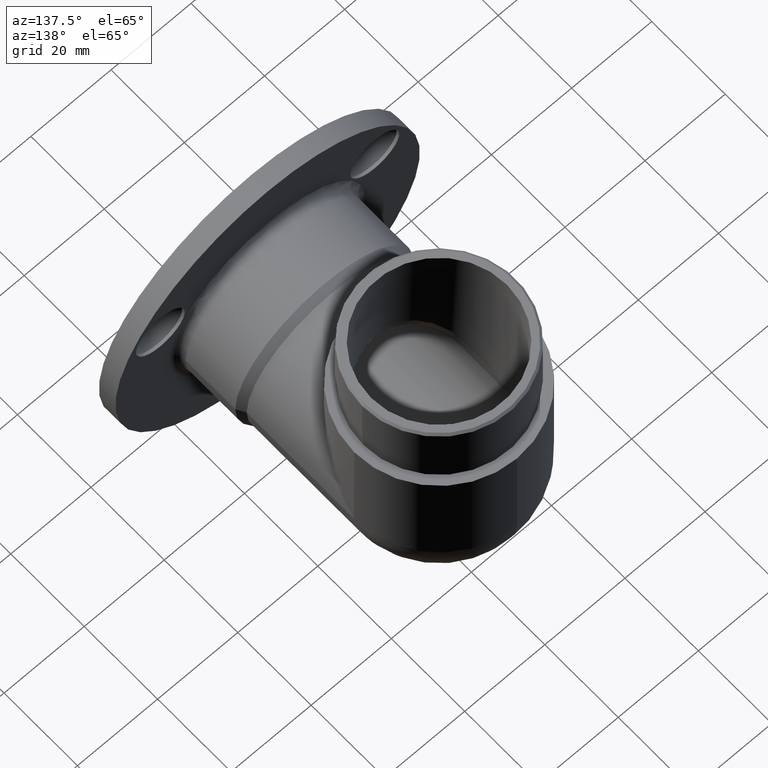
[diagram: clean part render]
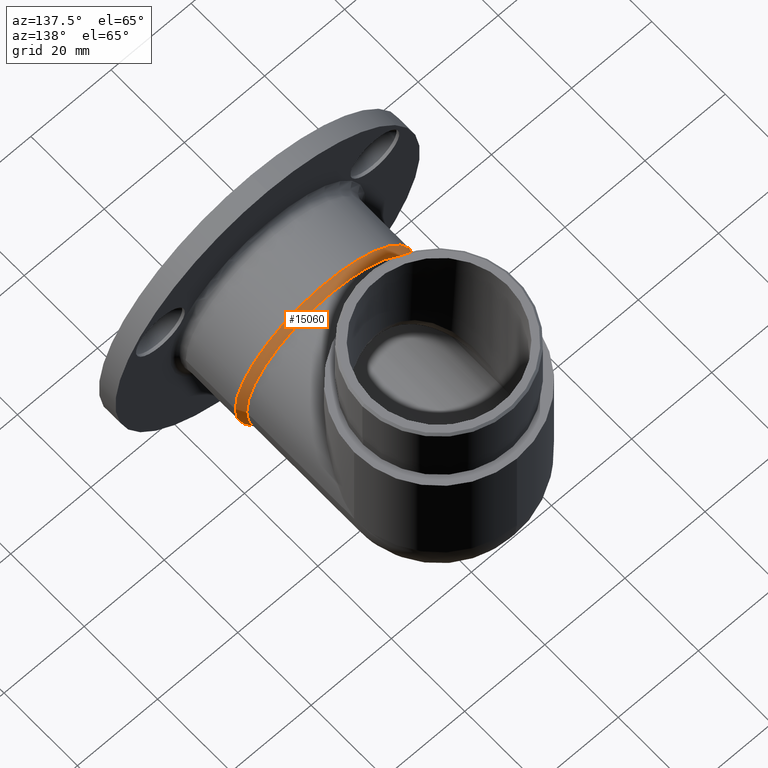
[diagram: same view with one face highlighted and labeled with its STEP entity id]
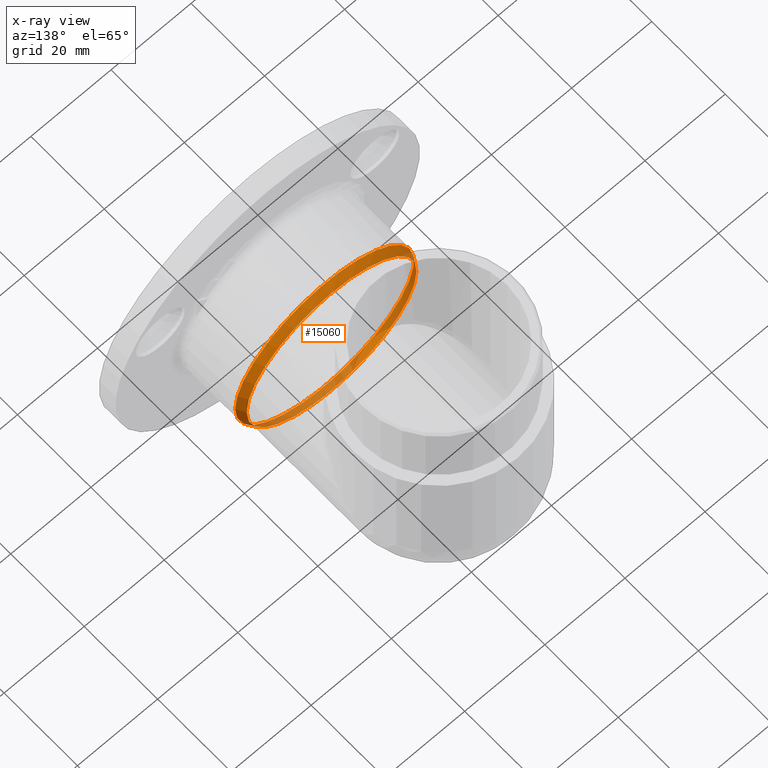
[diagram: x-ray of the same camera — body ghosted, the highlighted face saturated]
A machine part, auxiliary view. The second image highlights one B-rep face of the part: STEP entity #15060.
The next image is the same camera in x-ray: the body ghosted, the highlighted face saturated — about 30% of this face is hidden behind the body in this view.
In plain terms, the highlighted conical surface has half-angle 30 deg.
Its self-contained STEP definition (entity closure, byte-faithful):
#192 = CARTESIAN_POINT ( 'NONE',  ( -21.19999999999999600, 21.90525588832578700, -6.938893903907228400E-015 ) ) ;
#333 = ORIENTED_EDGE ( 'NONE', *, *, #15257, .T. ) ;
#350 = AXIS2_PLACEMENT_3D ( 'NONE', #5551, #9405, #14193 ) ;
#601 = DIRECTION ( 'NONE',  ( -2.192750485135992100E-016, -1.000000000000000000, -0.0000000000000000000 ) ) ;
#715 = DIRECTION ( 'NONE',  ( 1.000000000000000000, -1.636531581110195200E-016, 0.0000000000000000000 ) ) ;
#1210 = VERTEX_POINT ( 'NONE', #15682 ) ;
#1785 = VERTEX_POINT ( 'NONE', #192 ) ;
#1965 = CIRCLE ( 'NONE', #11072, 22.29999999999999400 ) ;
#2383 = CARTESIAN_POINT ( 'NONE',  ( 3.469446951953612200E-015, 21.90525588832578300, 21.20000000000000300 ) ) ;
#2528 = VERTEX_POINT ( 'NONE', #9554 ) ;
#2547 = DIRECTION ( 'NONE',  ( 1.000000000000000000, -1.555805808050948500E-016, 0.0000000000000000000 ) ) ;
#2681 = CARTESIAN_POINT ( 'NONE',  ( 4.385500970271986400E-015, 20.00000000000000700, 0.0000000000000000000 ) ) ;
#3055 = CIRCLE ( 'NONE', #7481, 21.20000000000000300 ) ;
#3869 = EDGE_CURVE ( 'NONE', #2528, #1210, #15686, .T. ) ;
#4549 = CARTESIAN_POINT ( 'NONE',  ( 22.29999999999999700, 20.00000000000000400, 0.0000000000000000000 ) ) ;
#4660 = ORIENTED_EDGE ( 'NONE', *, *, #5767, .F. ) ;
#4805 = VERTEX_POINT ( 'NONE', #2383 ) ;
#5551 = CARTESIAN_POINT ( 'NONE',  ( 4.803276047615440900E-015, 21.90525588832578300, 0.0000000000000000000 ) ) ;
#5767 = EDGE_CURVE ( 'NONE', #5981, #5981, #1965, .T. ) ;
#5981 = VERTEX_POINT ( 'NONE', #4549 ) ;
#5996 = CIRCLE ( 'NONE', #350, 21.20000000000000300 ) ;
#6835 = CARTESIAN_POINT ( 'NONE',  ( 4.803276047615440900E-015, 21.90525588832578300, 0.0000000000000000000 ) ) ;
#7344 = CONICAL_SURFACE ( 'NONE', #10778, 22.29999999999999400, 0.5235987755982924900 ) ;
#7481 = AXIS2_PLACEMENT_3D ( 'NONE', #13235, #10759, #10822 ) ;
#7737 = FACE_BOUND ( 'NONE', #15430, .T. ) ;
#8334 = CARTESIAN_POINT ( 'NONE',  ( 4.385500970271986400E-015, 20.00000000000000700, 0.0000000000000000000 ) ) ;
#8855 = DIRECTION ( 'NONE',  ( -2.192750485135992100E-016, -1.000000000000000000, -0.0000000000000000000 ) ) ;
#9224 = DIRECTION ( 'NONE',  ( -2.192750485135992100E-016, -1.000000000000000000, -0.0000000000000000000 ) ) ;
#9405 = DIRECTION ( 'NONE',  ( -2.192750485135992100E-016, -1.000000000000000000, -0.0000000000000000000 ) ) ;
#9554 = CARTESIAN_POINT ( 'NONE',  ( 3.469446951953614200E-015, 21.90525588832578700, -21.20000000000000300 ) ) ;
#9783 = ORIENTED_EDGE ( 'NONE', *, *, #3869, .T. ) ;
#9796 = DIRECTION ( 'NONE',  ( -2.192750485135992100E-016, -1.000000000000000000, -0.0000000000000000000 ) ) ;
#9962 = EDGE_CURVE ( 'NONE', #1785, #2528, #3055, .T. ) ;
#10542 = AXIS2_PLACEMENT_3D ( 'NONE', #14113, #9224, #715 ) ;
#10759 = DIRECTION ( 'NONE',  ( -2.192750485135992100E-016, -1.000000000000000000, -0.0000000000000000000 ) ) ;
#10778 = AXIS2_PLACEMENT_3D ( 'NONE', #8334, #9796, #2547 ) ;
#10822 = DIRECTION ( 'NONE',  ( 1.000000000000000000, -1.636531581110195200E-016, 0.0000000000000000000 ) ) ;
#10840 = ORIENTED_EDGE ( 'NONE', *, *, #11052, .T. ) ;
#11048 = CIRCLE ( 'NONE', #15946, 21.20000000000000300 ) ;
#11052 = EDGE_CURVE ( 'NONE', #4805, #1785, #11048, .T. ) ;
#11072 = AXIS2_PLACEMENT_3D ( 'NONE', #2681, #8855, #11296 ) ;
#11296 = DIRECTION ( 'NONE',  ( 1.000000000000000000, -1.555805808050948500E-016, 0.0000000000000000000 ) ) ;
#11942 = ORIENTED_EDGE ( 'NONE', *, *, #9962, .T. ) ;
#13235 = CARTESIAN_POINT ( 'NONE',  ( 4.803276047615440900E-015, 21.90525588832578300, 0.0000000000000000000 ) ) ;
#13863 = EDGE_LOOP ( 'NONE', ( #4660 ) ) ;
#14113 = CARTESIAN_POINT ( 'NONE',  ( 4.803276047615440900E-015, 21.90525588832578300, 0.0000000000000000000 ) ) ;
#14193 = DIRECTION ( 'NONE',  ( 1.000000000000000000, -1.636531581110195200E-016, 0.0000000000000000000 ) ) ;
#15060 = ADVANCED_FACE ( 'NONE', ( #7737, #15112 ), #7344, .T. ) ;
#15112 = FACE_OUTER_BOUND ( 'NONE', #13863, .T. ) ;
#15257 = EDGE_CURVE ( 'NONE', #1210, #4805, #5996, .T. ) ;
#15430 = EDGE_LOOP ( 'NONE', ( #333, #10840, #11942, #9783 ) ) ;
#15436 = DIRECTION ( 'NONE',  ( 1.000000000000000000, -1.636531581110195200E-016, 0.0000000000000000000 ) ) ;
#15682 = CARTESIAN_POINT ( 'NONE',  ( 21.20000000000000300, 21.90525588832578700, 0.0000000000000000000 ) ) ;
#15686 = CIRCLE ( 'NONE', #10542, 21.20000000000000300 ) ;
#15946 = AXIS2_PLACEMENT_3D ( 'NONE', #6835, #601, #15436 ) ;